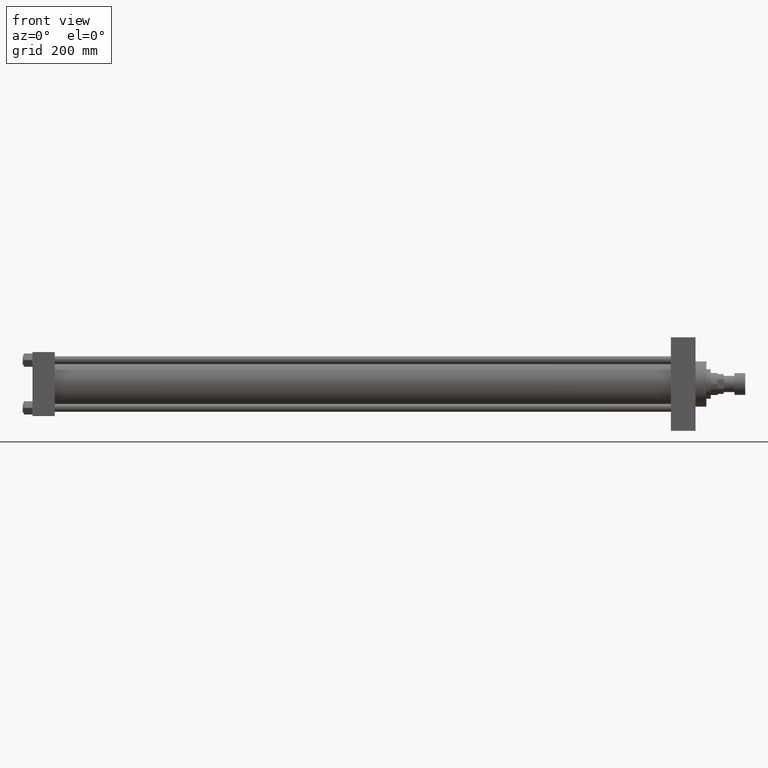
[diagram: clean part render]
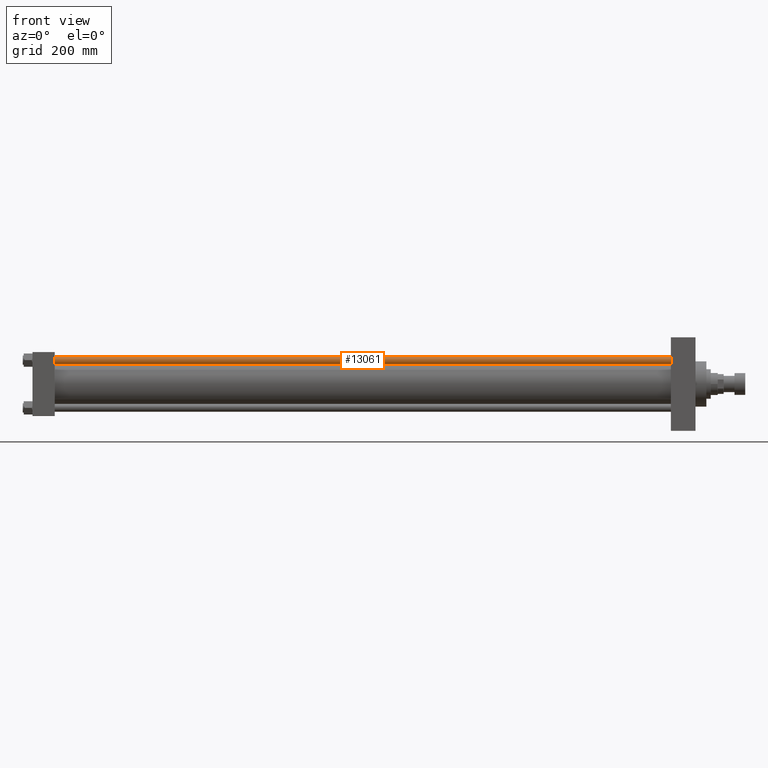
[diagram: same view with one face highlighted and labeled with its STEP entity id]
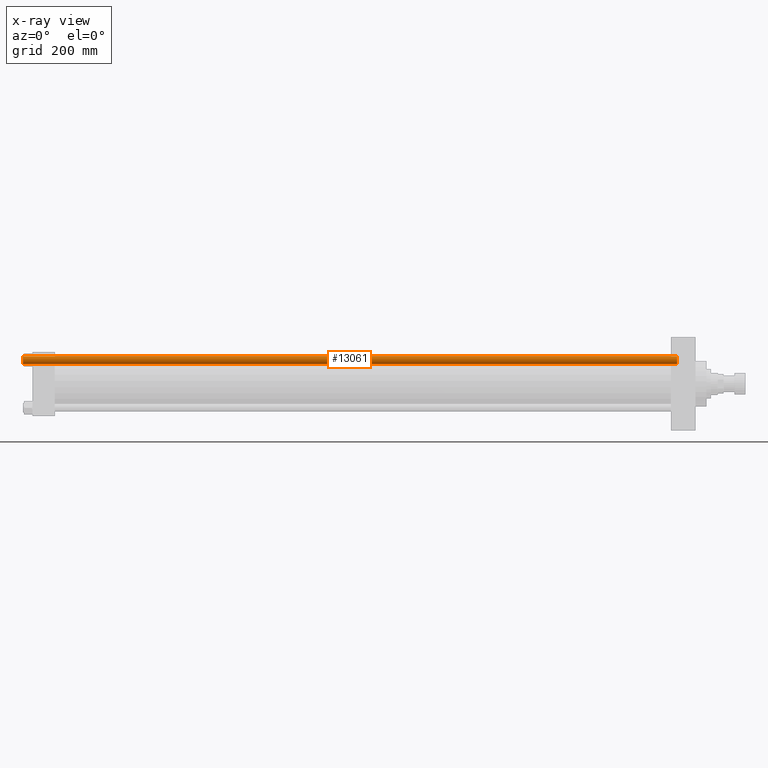
[diagram: x-ray of the same camera — body ghosted, the highlighted face saturated]
A machine part, front view. The second image highlights one B-rep face of the part: STEP entity #13061.
The next image is the same camera in x-ray: the body ghosted, the highlighted face saturated — about 0% of this face is hidden behind the body in this view.
In plain terms, the highlighted cylindrical surface (edge-blend (fillet) strip) has radius 8 mm, axis along (1, 0, 0).
Its self-contained STEP definition (entity closure, byte-faithful):
#1431 = CIRCLE ( 'NONE', #22390, 8.000000000000000000 ) ;
#1858 = EDGE_CURVE ( 'NONE', #17936, #33205, #1431, .T. ) ;
#2406 = DIRECTION ( 'NONE',  ( 0.000000000000000000, 0.000000000000000000, -1.000000000000000000 ) ) ;
#3463 = CARTESIAN_POINT ( 'NONE',  ( -8.000000000000000000, 0.000000000000000000, 0.5000000000001669775 ) ) ;
#5108 = EDGE_CURVE ( 'NONE', #43701, #43757, #46573, .T. ) ;
#5119 = EDGE_CURVE ( 'NONE', #33205, #43701, #15087, .T. ) ;
#6153 = CYLINDRICAL_SURFACE ( 'NONE', #14139, 8.000000000000000000 ) ;
#9610 = ORIENTED_EDGE ( 'NONE', *, *, #5108, .T. ) ;
#9815 = ORIENTED_EDGE ( 'NONE', *, *, #1858, .T. ) ;
#10264 = DIRECTION ( 'NONE',  ( -1.000000000000000000, 0.000000000000000000, 0.000000000000000000 ) ) ;
#10961 = CARTESIAN_POINT ( 'NONE',  ( 0.000000000000000000, 0.000000000000000000, 0.5000000000001669775 ) ) ;
#13061 = ADVANCED_FACE ( 'NONE', ( #36548 ), #6153, .T. ) ;
#13929 = VECTOR ( 'NONE', #22164, 1000.000000000000000 ) ;
#14139 = AXIS2_PLACEMENT_3D ( 'NONE', #28517, #46763, #10264 ) ;
#14603 = CARTESIAN_POINT ( 'NONE',  ( 8.000000000000000000, 9.797174393178825657E-16, 1329.000000000000000 ) ) ;
#15087 = LINE ( 'NONE', #14603, #13929 ) ;
#16257 = AXIS2_PLACEMENT_3D ( 'NONE', #10961, #43837, #29700 ) ;
#16269 = CARTESIAN_POINT ( 'NONE',  ( 8.000000000000000000, 9.797174393178825657E-16, 1328.500000000000227 ) ) ;
#17221 = DIRECTION ( 'NONE',  ( 1.000000000000000000, 0.000000000000000000, 0.000000000000000000 ) ) ;
#17809 = CARTESIAN_POINT ( 'NONE',  ( -8.000000000000000000, 0.000000000000000000, 1328.500000000000227 ) ) ;
#17936 = VERTEX_POINT ( 'NONE', #17809 ) ;
#18581 = VECTOR ( 'NONE', #20257, 1000.000000000000000 ) ;
#20257 = DIRECTION ( 'NONE',  ( -0.000000000000000000, -0.000000000000000000, -1.000000000000000000 ) ) ;
#22164 = DIRECTION ( 'NONE',  ( -0.000000000000000000, -0.000000000000000000, -1.000000000000000000 ) ) ;
#22390 = AXIS2_PLACEMENT_3D ( 'NONE', #35731, #2406, #17221 ) ;
#24482 = ORIENTED_EDGE ( 'NONE', *, *, #32605, .F. ) ;
#25265 = EDGE_LOOP ( 'NONE', ( #9815, #33877, #9610, #24482 ) ) ;
#28517 = CARTESIAN_POINT ( 'NONE',  ( 0.000000000000000000, 0.000000000000000000, 1329.000000000000000 ) ) ;
#29700 = DIRECTION ( 'NONE',  ( 1.000000000000000000, 0.000000000000000000, 0.000000000000000000 ) ) ;
#32185 = CARTESIAN_POINT ( 'NONE',  ( -8.000000000000000000, 0.000000000000000000, 1329.000000000000000 ) ) ;
#32605 = EDGE_CURVE ( 'NONE', #17936, #43757, #35825, .T. ) ;
#33205 = VERTEX_POINT ( 'NONE', #16269 ) ;
#33877 = ORIENTED_EDGE ( 'NONE', *, *, #5119, .T. ) ;
#35731 = CARTESIAN_POINT ( 'NONE',  ( 0.000000000000000000, 0.000000000000000000, 1328.500000000000227 ) ) ;
#35825 = LINE ( 'NONE', #32185, #18581 ) ;
#36064 = CARTESIAN_POINT ( 'NONE',  ( 8.000000000000000000, 9.797174393178825657E-16, 0.5000000000001669775 ) ) ;
#36548 = FACE_OUTER_BOUND ( 'NONE', #25265, .T. ) ;
#43701 = VERTEX_POINT ( 'NONE', #36064 ) ;
#43757 = VERTEX_POINT ( 'NONE', #3463 ) ;
#43837 = DIRECTION ( 'NONE',  ( -0.000000000000000000, -0.000000000000000000, 1.000000000000000000 ) ) ;
#46573 = CIRCLE ( 'NONE', #16257, 8.000000000000000000 ) ;
#46763 = DIRECTION ( 'NONE',  ( -0.000000000000000000, -0.000000000000000000, -1.000000000000000000 ) ) ;